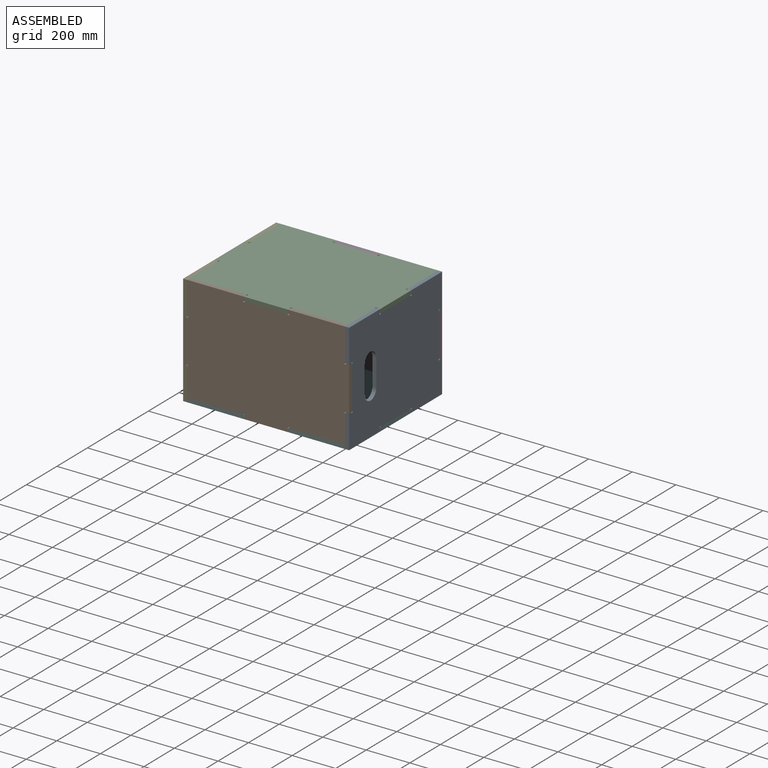
[diagram: assembled view]
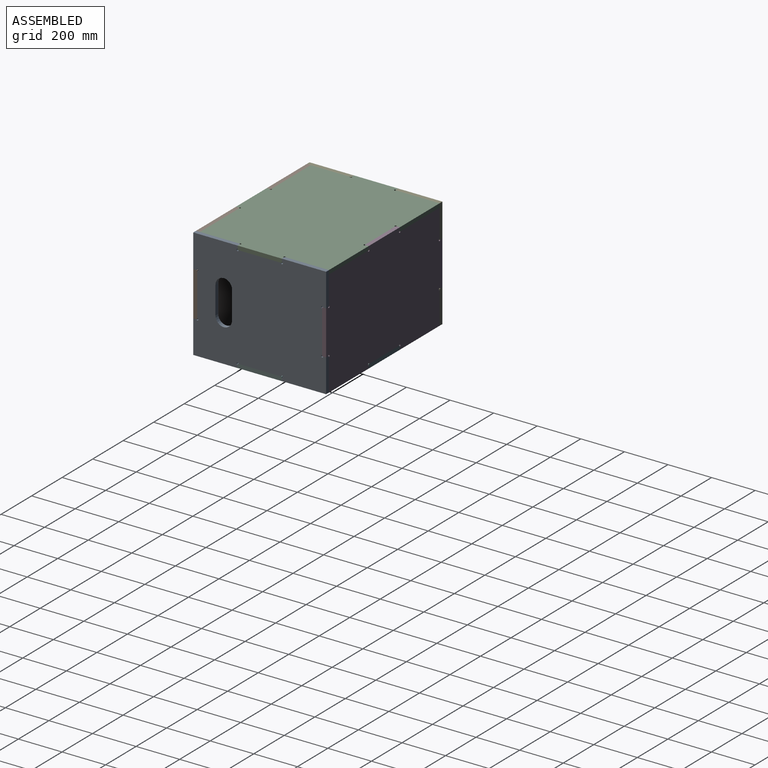
[diagram: assembled view, second angle]
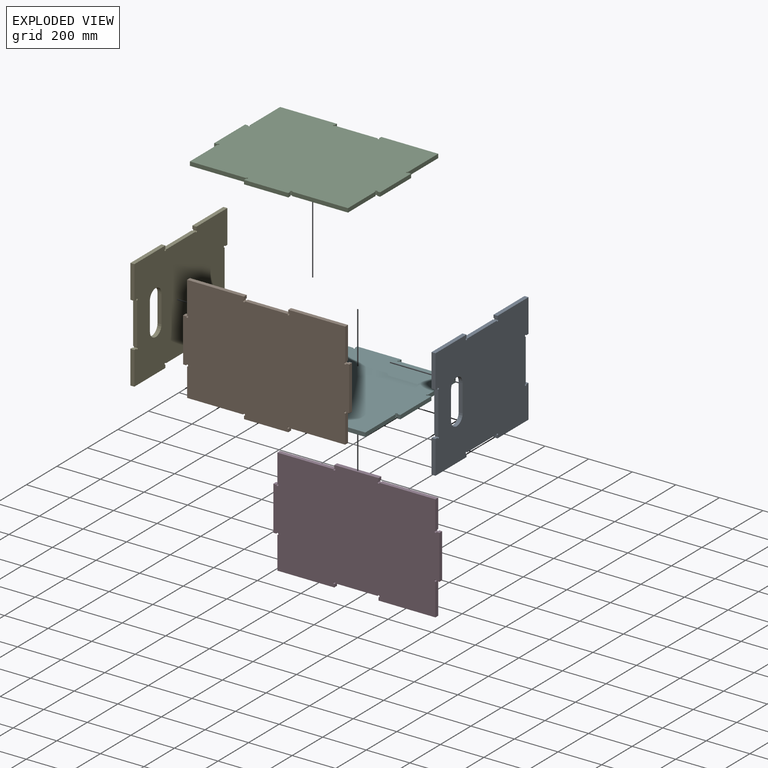
[diagram: exploded view]
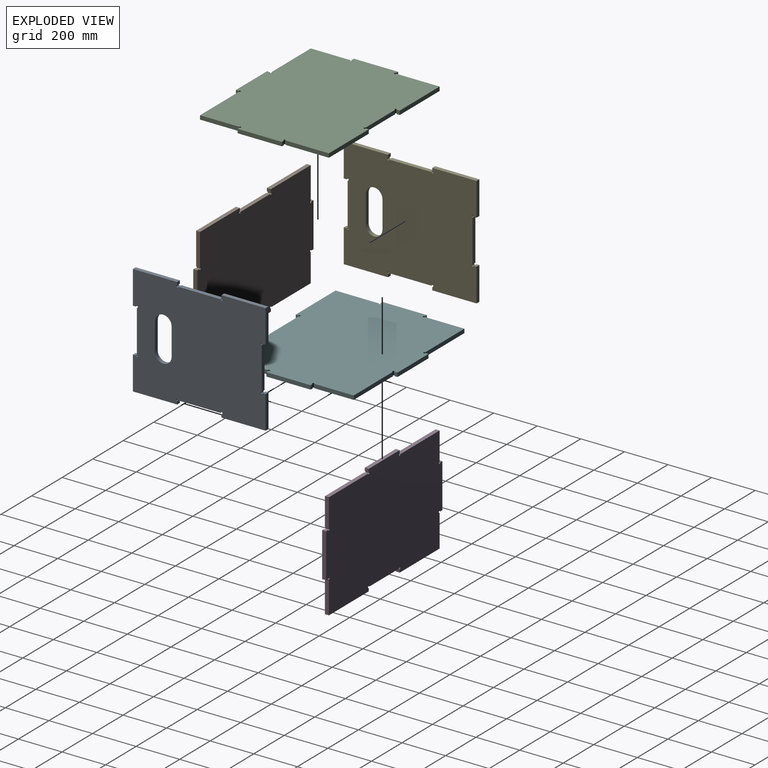
[diagram: exploded view, second angle]
ASSEMBLY  parts=6 mates=5
PART A: 34 faces, bbox 609.6x18.3x508 mm
  f0: plane 127x18.26mm, normal (-1,0,0), area 2318.5mm2, adj f1,f31,f32,f33
  f1: cylinder r=38.1mm len=76.2mm, axis (0,1,0), area 2185.2mm2, adj f0,f2,f32,f33
  f2: plane 127x18.26mm, normal (1,0,0), area 2318.5mm2, adj f1,f31,f32,f33
  f3: plane 18.26x13.49mm, normal (0,0,1), area 246.3mm2, adj f4,f30,f32,f33
  f4: cylinder r=4.76mm len=18.26mm, axis (0,1,0), area 409.7mm2, adj f3,f5,f32,f33
  f5: plane 193.68x18.26mm, normal (1,0,0), area 3535.8mm2, adj f4,f6,f32,f33
  f6: cylinder r=4.76mm len=18.26mm, axis (0,1,0), area 409.7mm2, adj f5,f7,f32,f33
  f7: plane 18.26x13.49mm, normal (0,0,-1), area 246.3mm2, adj f6,f8,f32,f33
  f8: plane 152.4x18.26mm, normal (1,0,0), area 2782.3mm2, adj f7,f9,f32,f33
  f9: plane 203.2x18.26mm, normal (0,0,1), area 3709.7mm2, adj f8,f10,f32,f33
  f10: plane 18.26x13.49mm, normal (-1,0,0), area 246.3mm2, adj f9,f11,f32,f33
  f11: cylinder r=4.76mm len=18.26mm, axis (0,1,0), area 409.7mm2, adj f10,f12,f32,f33
  f12: plane 193.68x18.26mm, normal (0,0,1), area 3535.8mm2, adj f11,f13,f32,f33
  f13: cylinder r=4.76mm len=18.26mm, axis (0,1,0), area 409.7mm2, adj f12,f14,f32,f33
  f14: plane 18.26x13.49mm, normal (1,0,0), area 246.3mm2, adj f13,f15,f32,f33
  f15: plane 203.2x18.26mm, normal (0,0,1), area 3709.7mm2, adj f14,f16,f32,f33
  f16: plane 152.4x18.26mm, normal (-1,0,0), area 2782.3mm2, adj f15,f17,f32,f33
  f17: plane 18.26x13.49mm, normal (0,0,-1), area 246.3mm2, adj f16,f18,f32,f33
  f18: cylinder r=4.76mm len=18.26mm, axis (0,1,0), area 409.7mm2, adj f17,f19,f32,f33
  f19: plane 193.68x18.26mm, normal (-1,0,0), area 3535.8mm2, adj f18,f20,f32,f33
  f20: cylinder r=4.76mm len=18.26mm, axis (0,1,0), area 409.7mm2, adj f19,f21,f32,f33
  f21: plane 18.26x13.49mm, normal (0,0,1), area 246.3mm2, adj f20,f22,f32,f33
  f22: plane 152.4x18.26mm, normal (-1,0,0), area 2782.3mm2, adj f21,f23,f32,f33
  f23: plane 203.2x18.26mm, normal (0,0,-1), area 3709.7mm2, adj f22,f24,f32,f33
  f24: plane 18.26x13.49mm, normal (1,0,0), area 246.3mm2, adj f23,f25,f32,f33
  f25: cylinder r=4.76mm len=18.26mm, axis (0,1,0), area 409.7mm2, adj f24,f26,f32,f33
  f26: plane 193.68x18.26mm, normal (0,0,-1), area 3535.8mm2, adj f25,f27,f32,f33
  f27: cylinder r=4.76mm len=18.26mm, axis (0,1,0), area 409.7mm2, adj f26,f28,f32,f33
  f28: plane 18.26x13.49mm, normal (-1,0,0), area 246.3mm2, adj f27,f29,f32,f33
  f29: plane 203.2x18.26mm, normal (0,0,-1), area 3709.7mm2, adj f28,f30,f32,f33
  f30: plane 152.4x18.26mm, normal (1,0,0), area 2782.3mm2, adj f3,f29,f32,f33
  f31: cylinder r=38.1mm len=76.2mm, axis (0,1,0), area 2185.2mm2, adj f0,f2,f32,f33
  f32: plane 609.6x508mm, normal (0,-1,0), area 280172.8mm2, adj f0,f1,f2,f3,f4,f5,f6,f7
  f33: plane 609.6x508mm, normal (0,1,0), area 280172.8mm2, adj f0,f1,f2,f3,f4,f5,f6,f7
PART B: 30 faces, bbox 762x18.3x508 mm
  f0: plane 129.38x18.26mm, normal (1,0,0), area 2362mm2, adj f1,f27,f28,f29
  f1: cylinder r=4.76mm len=18.26mm, axis (0,1,0), area 409.7mm2, adj f0,f2,f28,f29
  f2: plane 18.26x13.49mm, normal (0,0,-1), area 246.3mm2, adj f1,f3,f28,f29
  f3: plane 203.2x18.26mm, normal (1,0,0), area 3709.7mm2, adj f2,f4,f28,f29
  f4: plane 18.26x13.49mm, normal (0,0,1), area 246.3mm2, adj f3,f5,f28,f29
  f5: cylinder r=4.76mm len=18.26mm, axis (0,1,0), area 409.7mm2, adj f4,f6,f28,f29
  f6: plane 147.64x18.26mm, normal (1,0,0), area 2695.3mm2, adj f5,f7,f28,f29
  f7: plane 261.14x18.26mm, normal (0,0,1), area 4767.5mm2, adj f6,f8,f28,f29
  f8: plane 18.26x13.49mm, normal (-1,0,0), area 246.3mm2, adj f7,f9,f28,f29
  f9: cylinder r=4.76mm len=18.26mm, axis (0,1,0), area 409.7mm2, adj f8,f10,f28,f29
  f10: plane 193.68x18.26mm, normal (0,0,1), area 3535.8mm2, adj f9,f11,f28,f29
  f11: cylinder r=4.76mm len=18.26mm, axis (0,1,0), area 409.7mm2, adj f10,f12,f28,f29
  f12: plane 18.26x13.49mm, normal (1,0,0), area 246.3mm2, adj f11,f13,f28,f29
  f13: plane 261.14x18.26mm, normal (0,0,1), area 4767.5mm2, adj f12,f14,f28,f29
  f14: plane 147.64x18.26mm, normal (-1,0,0), area 2695.3mm2, adj f13,f15,f28,f29
  f15: cylinder r=4.76mm len=18.26mm, axis (0,1,0), area 409.7mm2, adj f14,f16,f28,f29
  f16: plane 18.26x13.49mm, normal (0,0,1), area 246.3mm2, adj f15,f17,f28,f29
  f17: plane 203.2x18.26mm, normal (-1,0,0), area 3709.7mm2, adj f16,f18,f28,f29
  f18: plane 18.26x13.49mm, normal (0,0,-1), area 246.3mm2, adj f17,f19,f28,f29
  f19: cylinder r=4.76mm len=18.26mm, axis (0,1,0), area 409.7mm2, adj f18,f20,f28,f29
  f20: plane 129.38x18.26mm, normal (-1,0,0), area 2362mm2, adj f19,f21,f28,f29
  f21: plane 256.38x18.26mm, normal (0,0,-1), area 4680.6mm2, adj f20,f22,f28,f29
  f22: cylinder r=4.76mm len=18.26mm, axis (0,1,0), area 409.7mm2, adj f21,f23,f28,f29
  f23: plane 18.26x13.49mm, normal (-1,0,0), area 246.3mm2, adj f22,f24,f28,f29
  f24: plane 203.2x18.26mm, normal (0,0,-1), area 3709.7mm2, adj f23,f25,f28,f29
  f25: plane 18.26x13.49mm, normal (1,0,0), area 246.3mm2, adj f24,f26,f28,f29
  f26: cylinder r=4.76mm len=18.26mm, axis (0,1,0), area 409.7mm2, adj f25,f27,f28,f29
  f27: plane 256.38x18.26mm, normal (0,0,-1), area 4680.6mm2, adj f0,f26,f28,f29
  f28: plane 762x508mm, normal (0,-1,0), area 362294.8mm2, adj f0,f1,f2,f3,f4,f5,f6,f7
  f29: plane 762x508mm, normal (0,1,0), area 362294.8mm2, adj f0,f1,f2,f3,f4,f5,f6,f7
PART C: 30 faces, bbox 762x18.3x609.6 mm
  f0: plane 256.38x18.26mm, normal (0,0,-1), area 4680.6mm2, adj f1,f27,f28,f29
  f1: plane 180.18x18.26mm, normal (1,0,0), area 3289.4mm2, adj f0,f2,f28,f29
  f2: cylinder r=4.76mm len=18.26mm, axis (0,1,0), area 409.7mm2, adj f1,f3,f28,f29
  f3: plane 18.26x13.49mm, normal (0,0,-1), area 246.3mm2, adj f2,f4,f28,f29
  f4: plane 203.2x18.26mm, normal (1,0,0), area 3709.7mm2, adj f3,f5,f28,f29
  f5: plane 18.26x13.49mm, normal (0,0,1), area 246.3mm2, adj f4,f6,f28,f29
  f6: cylinder r=4.76mm len=18.26mm, axis (0,1,0), area 409.7mm2, adj f5,f7,f28,f29
  f7: plane 198.44x18.26mm, normal (1,0,0), area 3622.7mm2, adj f6,f8,f28,f29
  f8: plane 261.14x18.26mm, normal (0,0,1), area 4767.5mm2, adj f7,f9,f28,f29
  f9: plane 18.26x13.49mm, normal (-1,0,0), area 246.3mm2, adj f8,f10,f28,f29
  f10: cylinder r=4.76mm len=18.26mm, axis (0,1,0), area 409.7mm2, adj f9,f11,f28,f29
  f11: plane 193.68x18.26mm, normal (0,0,1), area 3535.8mm2, adj f10,f12,f28,f29
  f12: cylinder r=4.76mm len=18.26mm, axis (0,1,0), area 409.7mm2, adj f11,f13,f28,f29
  f13: plane 18.26x13.49mm, normal (1,0,0), area 246.3mm2, adj f12,f14,f28,f29
  f14: plane 261.14x18.26mm, normal (0,0,1), area 4767.5mm2, adj f13,f15,f28,f29
  f15: plane 198.44x18.26mm, normal (-1,0,0), area 3622.7mm2, adj f14,f16,f28,f29
  f16: cylinder r=4.76mm len=18.26mm, axis (0,1,0), area 409.7mm2, adj f15,f17,f28,f29
  f17: plane 18.26x13.49mm, normal (0,0,1), area 246.3mm2, adj f16,f18,f28,f29
  f18: plane 203.2x18.26mm, normal (-1,0,0), area 3709.7mm2, adj f17,f19,f28,f29
  f19: plane 18.26x13.49mm, normal (0,0,-1), area 246.3mm2, adj f18,f20,f28,f29
  f20: cylinder r=4.76mm len=18.26mm, axis (0,1,0), area 409.7mm2, adj f19,f21,f28,f29
  f21: plane 180.18x18.26mm, normal (-1,0,0), area 3289.4mm2, adj f20,f22,f28,f29
  f22: plane 256.38x18.26mm, normal (0,0,-1), area 4680.6mm2, adj f21,f23,f28,f29
  f23: cylinder r=4.76mm len=18.26mm, axis (0,1,0), area 409.7mm2, adj f22,f24,f28,f29
  f24: plane 18.26x13.49mm, normal (-1,0,0), area 246.3mm2, adj f23,f25,f28,f29
  f25: plane 203.2x18.26mm, normal (0,0,-1), area 3709.7mm2, adj f24,f26,f28,f29
  f26: plane 18.26x13.49mm, normal (1,0,0), area 246.3mm2, adj f25,f27,f28,f29
  f27: cylinder r=4.76mm len=18.26mm, axis (0,1,0), area 409.7mm2, adj f0,f26,f28,f29
  f28: plane 762x609.6mm, normal (0,-1,0), area 436004.3mm2, adj f0,f1,f2,f3,f4,f5,f6,f7
  f29: plane 762x609.6mm, normal (0,1,0), area 436004.3mm2, adj f0,f1,f2,f3,f4,f5,f6,f7
PART D: same geometry as B
PART E: same geometry as A
PART F: same geometry as C
PLACE A rot(axis=(0,0,1),90deg) t=(187.1,-490.79,631.4)mm
PLACE B t=(-74.94,-15.57,631.4)mm fixed
PLACE C rot(axis=(-1,0,0),90deg) t=(-74.94,153.35,351.08)mm
PLACE D rot(axis=(1,0,0),180deg) t=(-74.94,557.52,-400.73)mm
PLACE E rot(axis=(0,0,1),90deg) t=(-556.65,-490.79,631.4)mm
PLACE F rot(axis=(1,0,0),90deg) t=(-74.94,388.61,-120.41)mm
MATE fastened B.f29 <-> E.f19  axis (0,1,0) through (-556.65,-15.57,115.33)mm
MATE fastened B.f29 <-> F.f11  axis (0,1,0) through (-175.65,-15.57,-138.67)mm
MATE fastened F.f29 <-> A.f26  axis (0,0,1) through (205.35,270.98,-120.41)mm
MATE fastened D.f10 <-> F.f29  axis (0,0,-1) through (-175.65,575.78,-120.41)mm
MATE fastened B.f10 <-> C.f29  axis (0,0,1) through (-175.65,-33.82,351.08)mm
